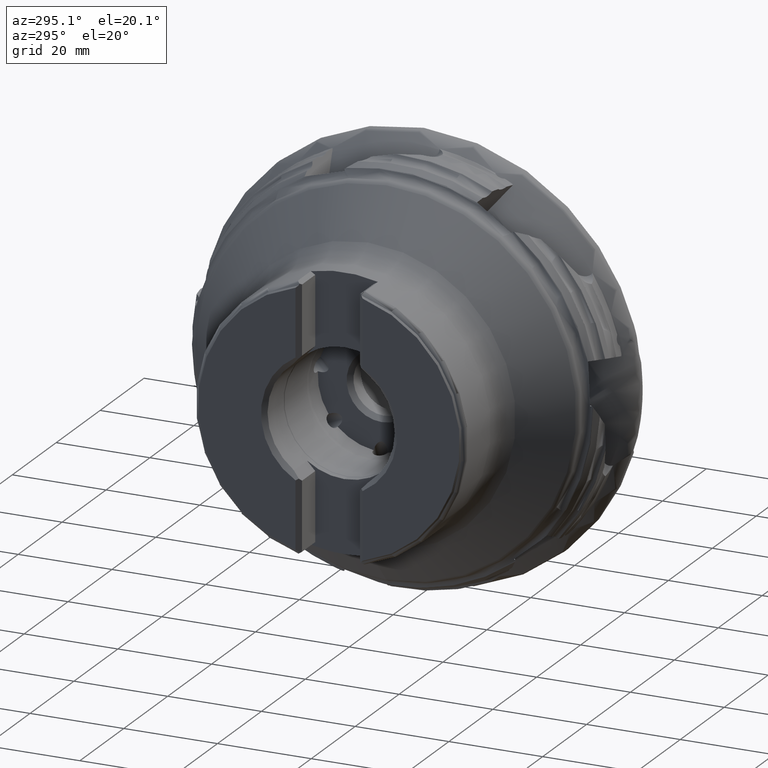
[diagram: clean part render]
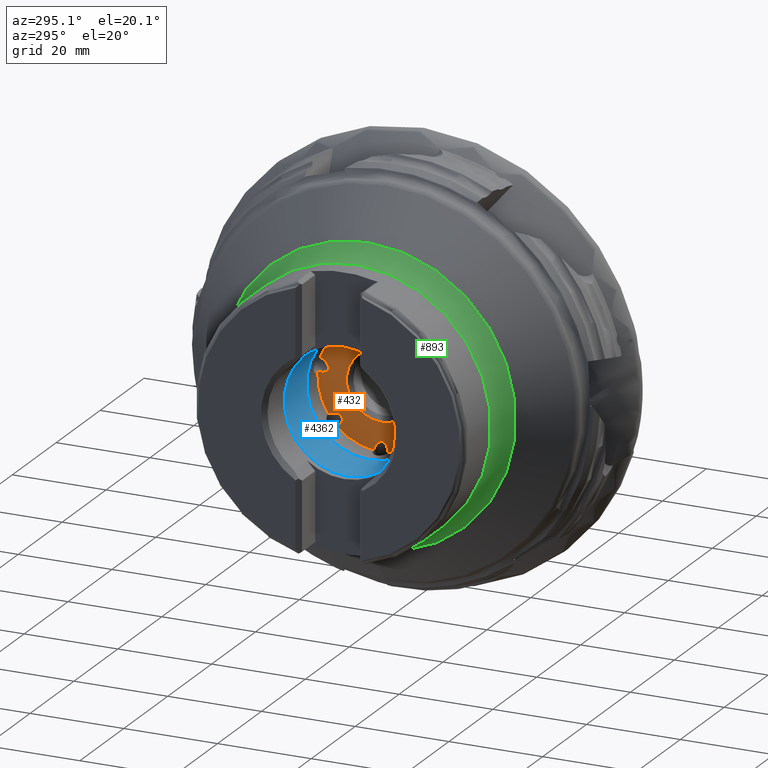
[diagram: same view with three faces highlighted in distinct colors, each labeled with its STEP entity id]
A machine part, auxiliary view with three faces highlighted in distinct colors.
Their STEP definitions:

[orange] entity #432 — the highlighted planar face has unit normal (1, 0, -0).
#50 = ORIENTED_EDGE ( 'NONE', *, *, #4875, .T. ) ;
#193 = ORIENTED_EDGE ( 'NONE', *, *, #4767, .T. ) ;
#273 = CARTESIAN_POINT ( 'NONE',  ( -25.19999999999998500, 13.10448551606885700, 3.820334979964510300 ) ) ;
#380 = CARTESIAN_POINT ( 'NONE',  ( -25.19999999999998500, 1.723307135544755800, -13.54077961258437100 ) ) ;
#391 = CARTESIAN_POINT ( 'NONE',  ( -25.19999999999998500, 7.502862237683690900, 11.40305039199337300 ) ) ;
#432 = ADVANCED_FACE ( 'NONE', ( #2458, #6652 ), #8221, .F. ) ;
#505 = VERTEX_POINT ( 'NONE', #9095 ) ;
#545 = CARTESIAN_POINT ( 'NONE',  ( -25.19999999999998500, -11.49224415381781500, -7.365515888859345500 ) ) ;
#616 =( BOUNDED_CURVE ( )  B_SPLINE_CURVE ( 3, ( #7936, #2382, #8724, #3979 ),
 .UNSPECIFIED., .F., .T. ) 
 B_SPLINE_CURVE_WITH_KNOTS ( ( 4, 4 ),
 ( 1.619631201621966500, 4.437310965217754700 ),
 .UNSPECIFIED. ) 
 CURVE ( )  GEOMETRIC_REPRESENTATION_ITEM ( )  RATIONAL_B_SPLINE_CURVE ( ( 1.000000000000000000, 0.4408329042348822500, 0.4408329042348822500, 1.000000000000000000 ) ) 
 REPRESENTATION_ITEM ( '' )  );
#661 = CARTESIAN_POINT ( 'NONE',  ( -25.19999999999998500, 13.62221617718283400, 0.8704748256538847900 ) ) ;
#828 = ORIENTED_EDGE ( 'NONE', *, *, #2419, .F. ) ;
#938 = DIRECTION ( 'NONE',  ( 1.000000000000000000, -0.0000000000000000000, -0.0000000000000000000 ) ) ;
#1063 = CARTESIAN_POINT ( 'NONE',  ( -25.19999999999998500, 10.02108325070815400, 0.1555197945307286400 ) ) ;
#1125 = CARTESIAN_POINT ( 'NONE',  ( -25.19999999999998500, -9.609306133426226600, -9.694520907919910600 ) ) ;
#1134 = DIRECTION ( 'NONE',  ( 1.000000000000000000, -0.0000000000000000000, -0.0000000000000000000 ) ) ;
#1144 = ORIENTED_EDGE ( 'NONE', *, *, #1505, .F. ) ;
#1174 = CIRCLE ( 'NONE', #3116, 13.64999999999999700 ) ;
#1220 = CIRCLE ( 'NONE', #1615, 13.64999999999999700 ) ;
#1287 = DIRECTION ( 'NONE',  ( 1.000000000000000000, -0.0000000000000000000, -0.0000000000000000000 ) ) ;
#1302 = EDGE_LOOP ( 'NONE', ( #4807, #50, #9310, #5947, #1144, #7777, #5207, #193, #6177, #3665, #828, #9157, #7739, #8282 ) ) ;
#1505 = EDGE_CURVE ( 'NONE', #5563, #9521, #2812, .T. ) ;
#1615 = AXIS2_PLACEMENT_3D ( 'NONE', #4266, #9816, #5059 ) ;
#1620 = CARTESIAN_POINT ( 'NONE',  ( -25.19999999999998500, 0.0000000000000000000, 0.0000000000000000000 ) ) ;
#1691 =( BOUNDED_CURVE ( )  B_SPLINE_CURVE ( 3, ( #8061, #5698, #1751, #7283 ),
 .UNSPECIFIED., .F., .F. ) 
 B_SPLINE_CURVE_WITH_KNOTS ( ( 4, 4 ),
 ( 1.619631201621975400, 4.437310965217747600 ),
 .UNSPECIFIED. ) 
 CURVE ( )  GEOMETRIC_REPRESENTATION_ITEM ( )  RATIONAL_B_SPLINE_CURVE ( ( 1.000000000000000000, 0.4408329042348875200, 0.4408329042348875200, 1.000000000000000000 ) ) 
 REPRESENTATION_ITEM ( '' )  );
#1725 = VERTEX_POINT ( 'NONE', #7347 ) ;
#1751 = CARTESIAN_POINT ( 'NONE',  ( -25.19999999999998500, 6.560563223587816000, -7.576628941252328000 ) ) ;
#1831 = EDGE_CURVE ( 'NONE', #8346, #9521, #4617, .T. ) ;
#1905 = AXIS2_PLACEMENT_3D ( 'NONE', #3107, #8675, #3925 ) ;
#1975 = AXIS2_PLACEMENT_3D ( 'NONE', #5882, #1134, #6683 ) ;
#2004 = CARTESIAN_POINT ( 'NONE',  ( -25.19999999999998500, 3.889664114781079100, 9.126498531427994700 ) ) ;
#2024 = VERTEX_POINT ( 'NONE', #7083 ) ;
#2111 =( BOUNDED_CURVE ( )  B_SPLINE_CURVE ( 3, ( #3432, #8237, #4300, #9852 ),
 .UNSPECIFIED., .F., .F. ) 
 B_SPLINE_CURVE_WITH_KNOTS ( ( 4, 4 ),
 ( 1.619631201621967200, 4.437310965217755600 ),
 .UNSPECIFIED. ) 
 CURVE ( )  GEOMETRIC_REPRESENTATION_ITEM ( )  RATIONAL_B_SPLINE_CURVE ( ( 1.000000000000000000, 0.4408329042348822500, 0.4408329042348822500, 1.000000000000000000 ) ) 
 REPRESENTATION_ITEM ( '' )  );
#2121 = EDGE_CURVE ( 'NONE', #8346, #1725, #8536, .T. ) ;
#2207 = EDGE_CURVE ( 'NONE', #505, #5755, #6617, .T. ) ;
#2272 = EDGE_CURVE ( 'NONE', #9647, #3868, #2111, .T. ) ;
#2282 = CARTESIAN_POINT ( 'NONE',  ( -25.19999999999998500, 4.835421078973601200, 12.76484245844882900 ) ) ;
#2382 = CARTESIAN_POINT ( 'NONE',  ( -25.19999999999998500, -9.767571008993327200, 1.736956808399525500 ) ) ;
#2415 = DIRECTION ( 'NONE',  ( 0.0000000000000000000, 0.0000000000000000000, -1.000000000000000000 ) ) ;
#2419 = EDGE_CURVE ( 'NONE', #4729, #3868, #5678, .T. ) ;
#2458 = FACE_OUTER_BOUND ( 'NONE', #1302, .T. ) ;
#2812 = CIRCLE ( 'NONE', #3105, 13.64999999999999700 ) ;
#3105 = AXIS2_PLACEMENT_3D ( 'NONE', #1620, #7152, #2415 ) ;
#3107 = CARTESIAN_POINT ( 'NONE',  ( -25.19999999999998500, 0.0000000000000000000, 0.0000000000000000000 ) ) ;
#3116 = AXIS2_PLACEMENT_3D ( 'NONE', #3286, #8850, #4106 ) ;
#3167 = CARTESIAN_POINT ( 'NONE',  ( -25.19999999999998500, 0.0000000000000000000, -7.500000000000001800 ) ) ;
#3286 = CARTESIAN_POINT ( 'NONE',  ( -25.19999999999998500, 0.0000000000000000000, 0.0000000000000000000 ) ) ;
#3414 = CARTESIAN_POINT ( 'NONE',  ( -25.19999999999998500, 7.500000000000001800, 0.0000000000000000000 ) ) ;
#3432 = CARTESIAN_POINT ( 'NONE',  ( -25.19999999999998500, -6.877116680907899000, 11.79100361110867300 ) ) ;
#3585 = CARTESIAN_POINT ( 'NONE',  ( -25.19999999999998500, 7.502862237683690900, 11.40305039199337300 ) ) ;
#3648 = AXIS2_PLACEMENT_3D ( 'NONE', #6030, #1287, #6826 ) ;
#3665 = ORIENTED_EDGE ( 'NONE', *, *, #2272, .T. ) ;
#3868 = VERTEX_POINT ( 'NONE', #4819 ) ;
#3925 = DIRECTION ( 'NONE',  ( 0.0000000000000000000, 0.0000000000000000000, -1.000000000000000000 ) ) ;
#3940 = EDGE_CURVE ( 'NONE', #2024, #5755, #1174, .T. ) ;
#3977 = DIRECTION ( 'NONE',  ( 1.000000000000000000, -0.0000000000000000000, -0.0000000000000000000 ) ) ;
#3979 = CARTESIAN_POINT ( 'NONE',  ( -25.19999999999998500, -12.79856772015940100, 4.745436156191815700 ) ) ;
#4106 = DIRECTION ( 'NONE',  ( 0.0000000000000000000, 0.0000000000000000000, -1.000000000000000000 ) ) ;
#4198 =( BOUNDED_CURVE ( )  B_SPLINE_CURVE ( 3, ( #7557, #2004, #8351, #3585 ),
 .UNSPECIFIED., .F., .F. ) 
 B_SPLINE_CURVE_WITH_KNOTS ( ( 4, 4 ),
 ( 1.619631201621974900, 4.437310965217747600 ),
 .UNSPECIFIED. ) 
 CURVE ( )  GEOMETRIC_REPRESENTATION_ITEM ( )  RATIONAL_B_SPLINE_CURVE ( ( 1.000000000000000000, 0.4408329042348875200, 0.4408329042348875200, 1.000000000000000000 ) ) 
 REPRESENTATION_ITEM ( '' )  );
#4252 = DIRECTION ( 'NONE',  ( 1.000000000000000000, 0.0000000000000000000, -0.0000000000000000000 ) ) ;
#4266 = CARTESIAN_POINT ( 'NONE',  ( -25.19999999999998500, 0.0000000000000000000, 0.0000000000000000000 ) ) ;
#4300 = CARTESIAN_POINT ( 'NONE',  ( -25.19999999999998500, -2.575219647957928800, 9.685790607321951700 ) ) ;
#4478 = CARTESIAN_POINT ( 'NONE',  ( -25.19999999999998500, -7.265466359522838100, -6.755402352829477800 ) ) ;
#4617 =( BOUNDED_CURVE ( )  B_SPLINE_CURVE ( 3, ( #380, #9857, #6646, #5916 ),
 .UNSPECIFIED., .F., .F. ) 
 B_SPLINE_CURVE_WITH_KNOTS ( ( 4, 4 ),
 ( 1.619631201621972300, 4.437310965217750300 ),
 .UNSPECIFIED. ) 
 CURVE ( )  GEOMETRIC_REPRESENTATION_ITEM ( )  RATIONAL_B_SPLINE_CURVE ( ( 1.000000000000000000, 0.4408329042348858000, 0.4408329042348858000, 1.000000000000000000 ) ) 
 REPRESENTATION_ITEM ( '' )  );
#4729 = VERTEX_POINT ( 'NONE', #2282 ) ;
#4757 = AXIS2_PLACEMENT_3D ( 'NONE', #3414, #4252, #9805 ) ;
#4767 = EDGE_CURVE ( 'NONE', #7848, #7590, #616, .T. ) ;
#4807 = ORIENTED_EDGE ( 'NONE', *, *, #3940, .F. ) ;
#4819 = CARTESIAN_POINT ( 'NONE',  ( -25.19999999999998500, -4.140130363015597200, 13.00699121923420900 ) ) ;
#4875 = EDGE_CURVE ( 'NONE', #2024, #1725, #1691, .T. ) ;
#4906 = VERTEX_POINT ( 'NONE', #3167 ) ;
#5059 = DIRECTION ( 'NONE',  ( 0.0000000000000000000, 0.0000000000000000000, -1.000000000000000000 ) ) ;
#5171 = VERTEX_POINT ( 'NONE', #7081 ) ;
#5207 = ORIENTED_EDGE ( 'NONE', *, *, #9709, .F. ) ;
#5278 = CARTESIAN_POINT ( 'NONE',  ( -25.19999999999998500, -8.689239405426606700, -4.994338242379674500 ) ) ;
#5371 = AXIS2_PLACEMENT_3D ( 'NONE', #5687, #938, #6484 ) ;
#5563 = VERTEX_POINT ( 'NONE', #1125 ) ;
#5678 = CIRCLE ( 'NONE', #1975, 13.64999999999999700 ) ;
#5682 = CIRCLE ( 'NONE', #6522, 7.500000000000001800 ) ;
#5687 = CARTESIAN_POINT ( 'NONE',  ( -25.19999999999998500, 0.0000000000000000000, 0.0000000000000000000 ) ) ;
#5698 = CARTESIAN_POINT ( 'NONE',  ( -25.19999999999998500, 8.017602921666314900, -5.842987742624536900 ) ) ;
#5755 = VERTEX_POINT ( 'NONE', #661 ) ;
#5816 = CARTESIAN_POINT ( 'NONE',  ( -25.19999999999998500, 9.629604108883477000, 2.386040040767624800 ) ) ;
#5882 = CARTESIAN_POINT ( 'NONE',  ( -25.19999999999998500, 0.0000000000000000000, 0.0000000000000000000 ) ) ;
#5916 = CARTESIAN_POINT ( 'NONE',  ( -25.19999999999998500, -1.271226264259501800, -13.59067635495220300 ) ) ;
#5933 = EDGE_LOOP ( 'NONE', ( #9801 ) ) ;
#5947 = ORIENTED_EDGE ( 'NONE', *, *, #1831, .T. ) ;
#6030 = CARTESIAN_POINT ( 'NONE',  ( -25.19999999999998500, 0.0000000000000000000, 0.0000000000000000000 ) ) ;
#6065 = EDGE_CURVE ( 'NONE', #9647, #7590, #6212, .T. ) ;
#6177 = ORIENTED_EDGE ( 'NONE', *, *, #6065, .F. ) ;
#6212 = CIRCLE ( 'NONE', #1905, 13.64999999999999700 ) ;
#6351 = CARTESIAN_POINT ( 'NONE',  ( -25.19999999999998500, -12.79856772015940100, 4.745436156191815700 ) ) ;
#6429 = CARTESIAN_POINT ( 'NONE',  ( -25.19999999999998500, -1.271226264259501800, -13.59067635495220300 ) ) ;
#6484 = DIRECTION ( 'NONE',  ( 0.0000000000000000000, 0.0000000000000000000, -1.000000000000000000 ) ) ;
#6522 = AXIS2_PLACEMENT_3D ( 'NONE', #8722, #3977, #9505 ) ;
#6605 = CARTESIAN_POINT ( 'NONE',  ( -25.19999999999998500, 13.62221617718283400, 0.8704748256538847900 ) ) ;
#6617 =( BOUNDED_CURVE ( )  B_SPLINE_CURVE ( 3, ( #273, #5816, #1063, #6605 ),
 .UNSPECIFIED., .F., .F. ) 
 B_SPLINE_CURVE_WITH_KNOTS ( ( 4, 4 ),
 ( 1.619631201621962900, 4.437310965217758300 ),
 .UNSPECIFIED. ) 
 CURVE ( )  GEOMETRIC_REPRESENTATION_ITEM ( )  RATIONAL_B_SPLINE_CURVE ( ( 1.000000000000000000, 0.4408329042348799700, 0.4408329042348799700, 1.000000000000000000 ) ) 
 REPRESENTATION_ITEM ( '' )  );
#6646 = CARTESIAN_POINT ( 'NONE',  ( -25.19999999999998500, -1.414037709658283200, -9.922035742718302100 ) ) ;
#6652 = FACE_BOUND ( 'NONE', #5933, .T. ) ;
#6683 = DIRECTION ( 'NONE',  ( 0.0000000000000000000, 0.0000000000000000000, -1.000000000000000000 ) ) ;
#6759 = VERTEX_POINT ( 'NONE', #391 ) ;
#6826 = DIRECTION ( 'NONE',  ( 0.0000000000000000000, 0.0000000000000000000, -1.000000000000000000 ) ) ;
#7081 = CARTESIAN_POINT ( 'NONE',  ( -25.19999999999998500, -11.49224415381781500, -7.365515888859345500 ) ) ;
#7083 = CARTESIAN_POINT ( 'NONE',  ( -25.19999999999998500, 11.34994730330030400, -7.582954319545063300 ) ) ;
#7152 = DIRECTION ( 'NONE',  ( 1.000000000000000000, -0.0000000000000000000, -0.0000000000000000000 ) ) ;
#7283 = CARTESIAN_POINT ( 'NONE',  ( -25.19999999999998500, 9.423014178232334000, -9.875692573021568800 ) ) ;
#7347 = CARTESIAN_POINT ( 'NONE',  ( -25.19999999999998500, 9.423014178232334000, -9.875692573021568800 ) ) ;
#7363 = EDGE_CURVE ( 'NONE', #4729, #6759, #4198, .T. ) ;
#7557 = CARTESIAN_POINT ( 'NONE',  ( -25.19999999999998500, 4.835421078973601200, 12.76484245844882900 ) ) ;
#7590 = VERTEX_POINT ( 'NONE', #6351 ) ;
#7739 = ORIENTED_EDGE ( 'NONE', *, *, #8663, .F. ) ;
#7777 = ORIENTED_EDGE ( 'NONE', *, *, #8029, .T. ) ;
#7848 = VERTEX_POINT ( 'NONE', #9746 ) ;
#7856 = CARTESIAN_POINT ( 'NONE',  ( -25.19999999999998500, 1.723307135544755800, -13.54077961258437100 ) ) ;
#7929 = CIRCLE ( 'NONE', #3648, 13.64999999999999700 ) ;
#7936 = CARTESIAN_POINT ( 'NONE',  ( -25.19999999999998500, -13.52541344312378700, 1.840024780421478700 ) ) ;
#7938 =( BOUNDED_CURVE ( )  B_SPLINE_CURVE ( 3, ( #10043, #4478, #5278, #545 ),
 .UNSPECIFIED., .F., .F. ) 
 B_SPLINE_CURVE_WITH_KNOTS ( ( 4, 4 ),
 ( 1.619631201621966100, 4.437310965217756500 ),
 .UNSPECIFIED. ) 
 CURVE ( )  GEOMETRIC_REPRESENTATION_ITEM ( )  RATIONAL_B_SPLINE_CURVE ( ( 1.000000000000000000, 0.4408329042348816400, 0.4408329042348816400, 1.000000000000000000 ) ) 
 REPRESENTATION_ITEM ( '' )  );
#8029 = EDGE_CURVE ( 'NONE', #5563, #5171, #7938, .T. ) ;
#8061 = CARTESIAN_POINT ( 'NONE',  ( -25.19999999999998500, 11.34994730330030400, -7.582954319545063300 ) ) ;
#8221 = PLANE ( 'NONE',  #4757 ) ;
#8237 = CARTESIAN_POINT ( 'NONE',  ( -25.19999999999998500, -4.644776534175697700, 8.766328382940200100 ) ) ;
#8282 = ORIENTED_EDGE ( 'NONE', *, *, #2207, .T. ) ;
#8346 = VERTEX_POINT ( 'NONE', #7856 ) ;
#8351 = CARTESIAN_POINT ( 'NONE',  ( -25.19999999999998500, 5.906634818106023300, 8.096787081901876300 ) ) ;
#8536 = CIRCLE ( 'NONE', #5371, 13.64999999999999700 ) ;
#8663 = EDGE_CURVE ( 'NONE', #505, #6759, #1220, .T. ) ;
#8675 = DIRECTION ( 'NONE',  ( 1.000000000000000000, -0.0000000000000000000, -0.0000000000000000000 ) ) ;
#8722 = CARTESIAN_POINT ( 'NONE',  ( -25.19999999999998500, 0.0000000000000000000, 0.0000000000000000000 ) ) ;
#8724 = CARTESIAN_POINT ( 'NONE',  ( -25.19999999999998500, -9.217970683502100500, 3.933867359509052500 ) ) ;
#8850 = DIRECTION ( 'NONE',  ( 1.000000000000000000, -0.0000000000000000000, -0.0000000000000000000 ) ) ;
#9095 = CARTESIAN_POINT ( 'NONE',  ( -25.19999999999998500, 13.10448551606885700, 3.820334979964510300 ) ) ;
#9157 = ORIENTED_EDGE ( 'NONE', *, *, #7363, .T. ) ;
#9310 = ORIENTED_EDGE ( 'NONE', *, *, #2121, .F. ) ;
#9439 = EDGE_CURVE ( 'NONE', #4906, #4906, #5682, .T. ) ;
#9505 = DIRECTION ( 'NONE',  ( 0.0000000000000000000, 0.0000000000000000000, -1.000000000000000000 ) ) ;
#9521 = VERTEX_POINT ( 'NONE', #6429 ) ;
#9647 = VERTEX_POINT ( 'NONE', #9834 ) ;
#9709 = EDGE_CURVE ( 'NONE', #7848, #5171, #7929, .T. ) ;
#9746 = CARTESIAN_POINT ( 'NONE',  ( -25.19999999999998500, -13.52541344312378700, 1.840024780421478700 ) ) ;
#9801 = ORIENTED_EDGE ( 'NONE', *, *, #9439, .T. ) ;
#9805 = DIRECTION ( 'NONE',  ( -0.0000000000000000000, 0.0000000000000000000, -1.000000000000000000 ) ) ;
#9816 = DIRECTION ( 'NONE',  ( 1.000000000000000000, -0.0000000000000000000, -0.0000000000000000000 ) ) ;
#9834 = CARTESIAN_POINT ( 'NONE',  ( -25.19999999999998500, -6.877116680907899000, 11.79100361110867300 ) ) ;
#9852 = CARTESIAN_POINT ( 'NONE',  ( -25.19999999999998500, -4.140130363015597200, 13.00699121923420900 ) ) ;
#9857 = CARTESIAN_POINT ( 'NONE',  ( -25.19999999999998500, 0.8502619611370139100, -9.884306600233324900 ) ) ;
#10043 = CARTESIAN_POINT ( 'NONE',  ( -25.19999999999998500, -9.609306133426226600, -9.694520907919910600 ) ) ;

[blue] entity #4362 — the highlighted cylindrical surface (bore or boss wall) has radius 13.5 mm, axis along (-1, -0, -0).
#249 = DIRECTION ( 'NONE',  ( 0.0000000000000000000, 0.0000000000000000000, 1.000000000000000000 ) ) ;
#392 = DIRECTION ( 'NONE',  ( 0.0000000000000000000, 0.0000000000000000000, 1.000000000000000000 ) ) ;
#1154 = EDGE_CURVE ( 'NONE', #3817, #3817, #8052, .T. ) ;
#1310 = AXIS2_PLACEMENT_3D ( 'NONE', #6580, #2623, #249 ) ;
#1655 = DIRECTION ( 'NONE',  ( -1.000000000000000000, 0.0000000000000000000, 0.0000000000000000000 ) ) ;
#1721 = AXIS2_PLACEMENT_3D ( 'NONE', #9869, #5105, #392 ) ;
#1925 = EDGE_LOOP ( 'NONE', ( #9882 ) ) ;
#2623 = DIRECTION ( 'NONE',  ( -1.000000000000000000, -0.0000000000000000000, -0.0000000000000000000 ) ) ;
#2796 = VERTEX_POINT ( 'NONE', #8732 ) ;
#3059 = CIRCLE ( 'NONE', #5976, 13.50000000000000000 ) ;
#3347 = EDGE_LOOP ( 'NONE', ( #5858 ) ) ;
#3379 = CYLINDRICAL_SURFACE ( 'NONE', #1310, 13.50000000000000000 ) ;
#3650 = FACE_OUTER_BOUND ( 'NONE', #1925, .T. ) ;
#3817 = VERTEX_POINT ( 'NONE', #8672 ) ;
#4362 = ADVANCED_FACE ( 'NONE', ( #7900, #3650 ), #3379, .F. ) ;
#5105 = DIRECTION ( 'NONE',  ( 1.000000000000000000, -0.0000000000000000000, -0.0000000000000000000 ) ) ;
#5858 = ORIENTED_EDGE ( 'NONE', *, *, #9471, .F. ) ;
#5976 = AXIS2_PLACEMENT_3D ( 'NONE', #6399, #1655, #7190 ) ;
#6399 = CARTESIAN_POINT ( 'NONE',  ( -30.53846302776155100, 0.0000000000000000000, 0.0000000000000000000 ) ) ;
#6580 = CARTESIAN_POINT ( 'NONE',  ( -27.25000000000000400, 0.0000000000000000000, 0.0000000000000000000 ) ) ;
#7190 = DIRECTION ( 'NONE',  ( 0.0000000000000000000, 0.0000000000000000000, -1.000000000000000000 ) ) ;
#7900 = FACE_OUTER_BOUND ( 'NONE', #3347, .T. ) ;
#8052 = CIRCLE ( 'NONE', #1721, 13.50000000000000000 ) ;
#8672 = CARTESIAN_POINT ( 'NONE',  ( -40.77857142857142500, 0.0000000000000000000, 13.50000000000000000 ) ) ;
#8732 = CARTESIAN_POINT ( 'NONE',  ( -30.53846302776155100, 0.0000000000000000000, -13.50000000000000000 ) ) ;
#9471 = EDGE_CURVE ( 'NONE', #2796, #2796, #3059, .T. ) ;
#9869 = CARTESIAN_POINT ( 'NONE',  ( -40.77857142857142500, 0.0000000000000000000, 0.0000000000000000000 ) ) ;
#9882 = ORIENTED_EDGE ( 'NONE', *, *, #1154, .F. ) ;

[green] entity #893 — the highlighted toroidal blend (fillet) surface has major radius 37 mm and minor (blend) radius 8 mm.
#23 = CARTESIAN_POINT ( 'NONE',  ( -31.47836134986215500, 0.0000000000000000000, -31.56371707220200700 ) ) ;
#565 = ORIENTED_EDGE ( 'NONE', *, *, #5019, .F. ) ;
#847 = CIRCLE ( 'NONE', #8759, 28.99999999999999600 ) ;
#893 = ADVANCED_FACE ( 'NONE', ( #5676, #3051 ), #5139, .F. ) ;
#1194 = VERTEX_POINT ( 'NONE', #23 ) ;
#1710 = VERTEX_POINT ( 'NONE', #6311 ) ;
#1989 = EDGE_CURVE ( 'NONE', #1710, #1710, #847, .T. ) ;
#2962 = AXIS2_PLACEMENT_3D ( 'NONE', #4190, #8934, #4251 ) ;
#3051 = FACE_OUTER_BOUND ( 'NONE', #6361, .T. ) ;
#3329 = CIRCLE ( 'NONE', #7478, 31.56371707220200700 ) ;
#3588 = CARTESIAN_POINT ( 'NONE',  ( -31.47836134986215500, 0.0000000000000000000, 0.0000000000000000000 ) ) ;
#4190 = CARTESIAN_POINT ( 'NONE',  ( -37.34750335946902300, 0.0000000000000000000, 0.0000000000000000000 ) ) ;
#4251 = DIRECTION ( 'NONE',  ( 0.0000000000000000000, 0.0000000000000000000, -1.000000000000000000 ) ) ;
#4375 = DIRECTION ( 'NONE',  ( 0.0000000000000000000, 0.0000000000000000000, -1.000000000000000000 ) ) ;
#4644 = DIRECTION ( 'NONE',  ( 1.000000000000000000, -0.0000000000000000000, -0.0000000000000000000 ) ) ;
#5019 = EDGE_CURVE ( 'NONE', #1194, #1194, #3329, .T. ) ;
#5139 = TOROIDAL_SURFACE ( 'NONE', #2962, 37.00000000000000000, 8.000000000000001800 ) ;
#5614 = ORIENTED_EDGE ( 'NONE', *, *, #1989, .T. ) ;
#5676 = FACE_OUTER_BOUND ( 'NONE', #6851, .T. ) ;
#6311 = CARTESIAN_POINT ( 'NONE',  ( -37.34750335946902300, 0.0000000000000000000, -28.99999999999999600 ) ) ;
#6361 = EDGE_LOOP ( 'NONE', ( #565 ) ) ;
#6851 = EDGE_LOOP ( 'NONE', ( #5614 ) ) ;
#7478 = AXIS2_PLACEMENT_3D ( 'NONE', #3588, #9122, #4375 ) ;
#8759 = AXIS2_PLACEMENT_3D ( 'NONE', #9386, #4644, #10211 ) ;
#8934 = DIRECTION ( 'NONE',  ( 1.000000000000000000, -0.0000000000000000000, -0.0000000000000000000 ) ) ;
#9122 = DIRECTION ( 'NONE',  ( 1.000000000000000000, -0.0000000000000000000, -0.0000000000000000000 ) ) ;
#9386 = CARTESIAN_POINT ( 'NONE',  ( -37.34750335946902300, 0.0000000000000000000, 0.0000000000000000000 ) ) ;
#10211 = DIRECTION ( 'NONE',  ( 0.0000000000000000000, 0.0000000000000000000, -1.000000000000000000 ) ) ;